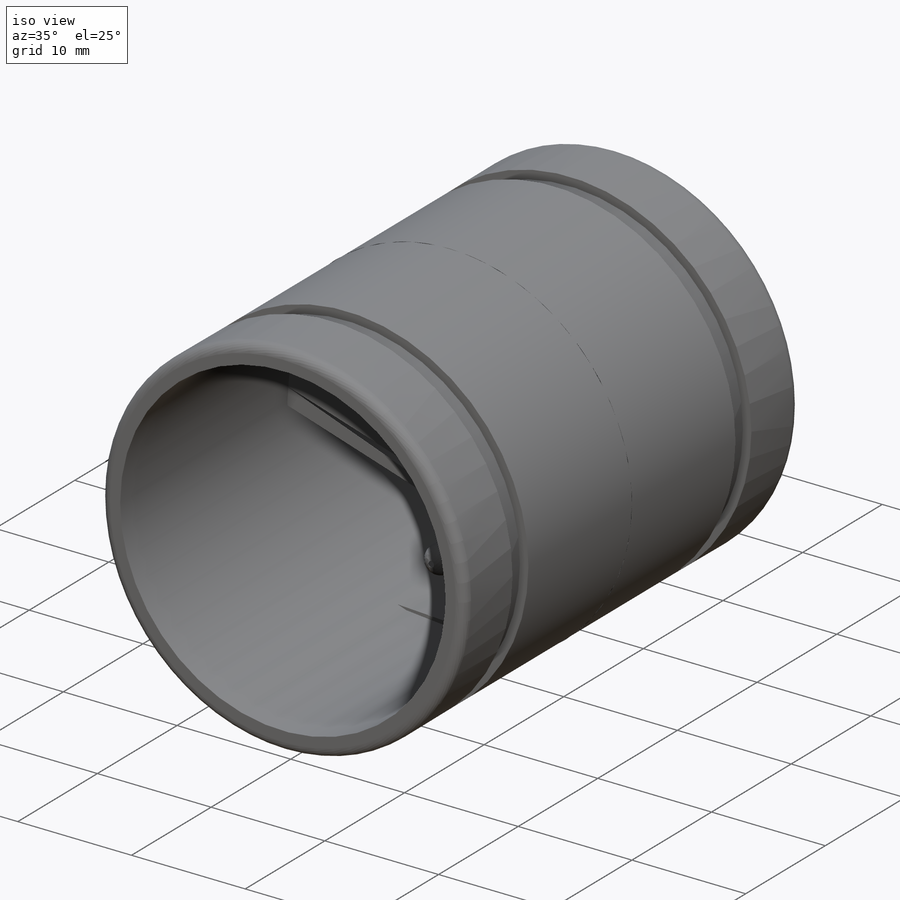
[diagram: iso view]
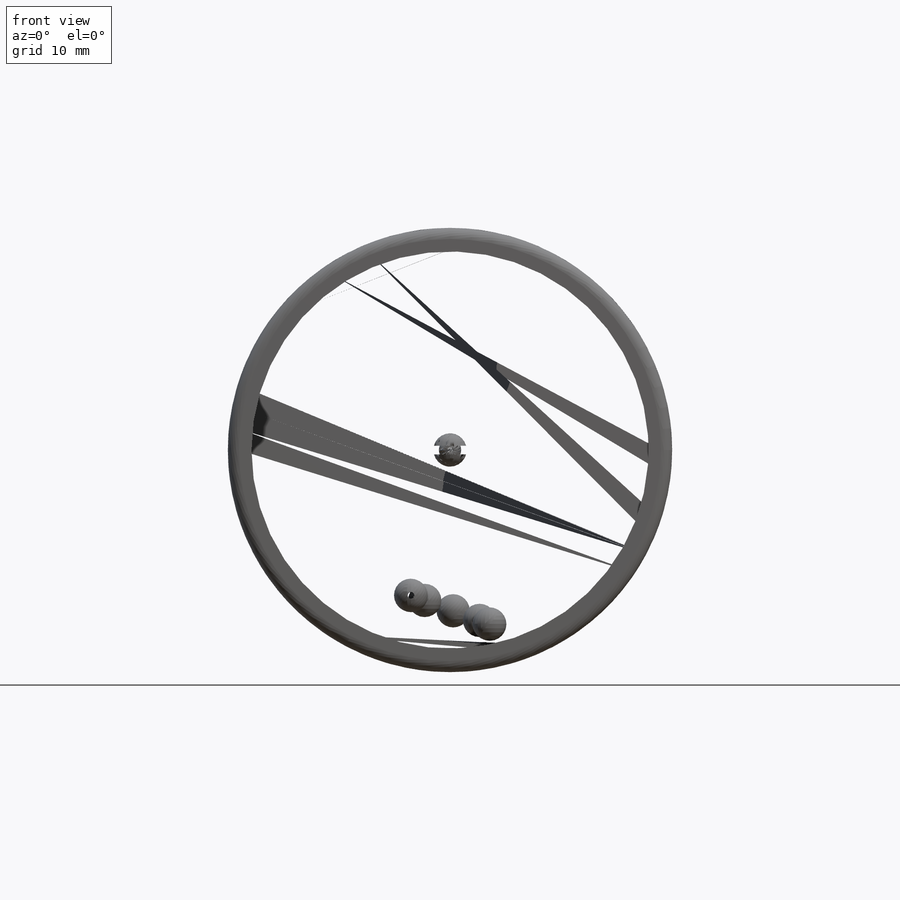
[diagram: front view]
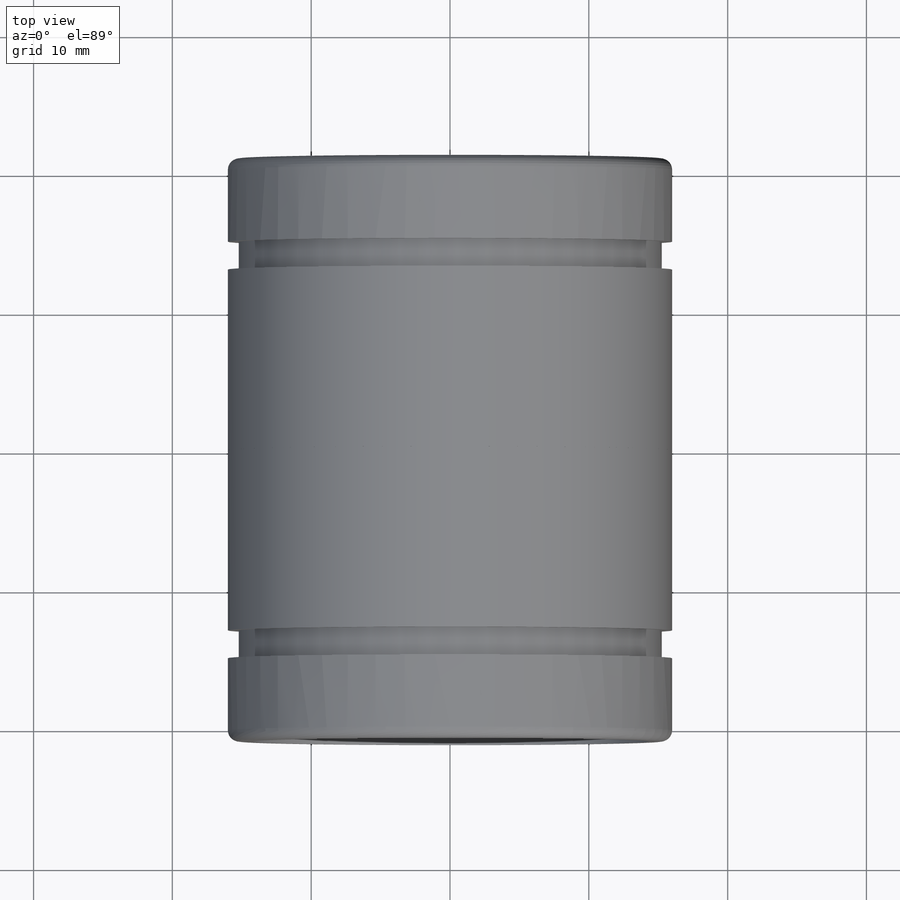
[diagram: top view]
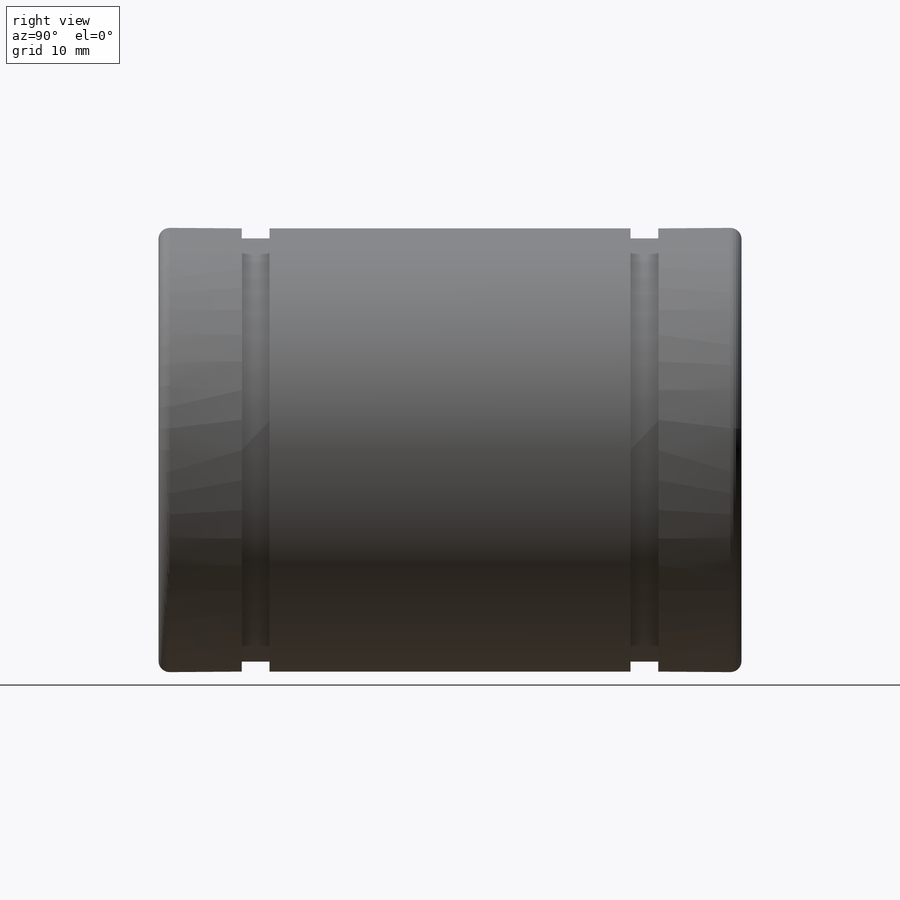
[diagram: right view]
SOLIDWORKS PART (.sldprt)
format: sldprt  version: not decoded by parser v0  size: 5,202,944 bytes
history: native  units: mm
features: sketch x9, plane x4, extrude x3, revolve x2, material x1, fillet x1, cut_revolve x1, sweep x1, chamfer x1, pattern_circular x1, move_body x1 (+9 scaffold rows collapsed)
feature tree (34):
  scaffold x9  (default folders/planes/origin — collapsed)
  material  "Литая легированная сталь"
  plane  "Спереди"
  plane  "Сверху"
  plane  "Справа"
  sketch  "Эскиз1"  dims[D1=32.0mm D2=1.7mm]
  extrude  "Бобышка-Вытянуть1"  Depth=42mm
  fillet  "Скругление1"  Radius=0.8mm
  sketch  "Эскиз2"  dims[c1.D1=~4.197762mm c1.D2=~2.178101mm c2.D1=~5.784721mm c2.D2=~3.048369mm c3.D1=2.0mm c3.D2=26.0mm c3.D3=15.25mm]
  cut_revolve  "Вырез-Повернуть1"  Angle=360deg
  sketch  "Эскиз3"  dims[c1.D1=1.5mm c1.D2=14.2mm c1.D3=0.6mm c1.D4=0.5mm c1.D5=10.0mm c1.D6=3.8mm c1.D7=~0.446458mm c2.D7=45.0deg c2.D8=3.8mm c2.D9=0.5mm c2.D10=1.0mm c2.D11=~4.629462mm]
  revolve  "Повернуть1"  Angle=360deg
  sketch  "Эскиз4"  dims[c1.D4=2.5mm c1.D5=~3.937164mm c1.D1=8.7979mm c2.D1=110.0deg c2.D2=6.0mm c2.D3=11.5mm]
  plane  "Плоскость1"
  sketch  "Эскиз5"  dims[D1=~14.413482mm D2=24.0mm]
  sweep  "Вырез-По траектории1"
  chamfer  "Фаска1"  Distance=0.2mm Angle=45deg
  pattern_circular  "Круговой массив1"  Count=5 Angle=72deg
  sketch  "Эскиз6"  dims[D2=1.25mm D1=2.4mm]
  revolve  "Повернуть2"  Angle=360deg
  sketch  "Эскиз7"  dims[D1=28.0 D3=2.35mm D2=1.0 D4=10.0mm]
  move_body  "Тело-Переместить/Копировать1"
  sketch  "Эскиз8"  dims[D1=22.5mm]
  extrude  "Бобышка-Вытянуть2"  Depth=0.3mm
  sketch  "Эскиз9"  dims[D1=22.5mm D2=22.5mm]
  extrude  "Бобышка-Вытянуть3"  Depth=0.3mm
decode coverage: 18 of 20 modeling features carry decoded parameters
note: ~ marks probable driven/reference dimensions
note: suppression state not decoded; provenance and decode notes live in map.json
